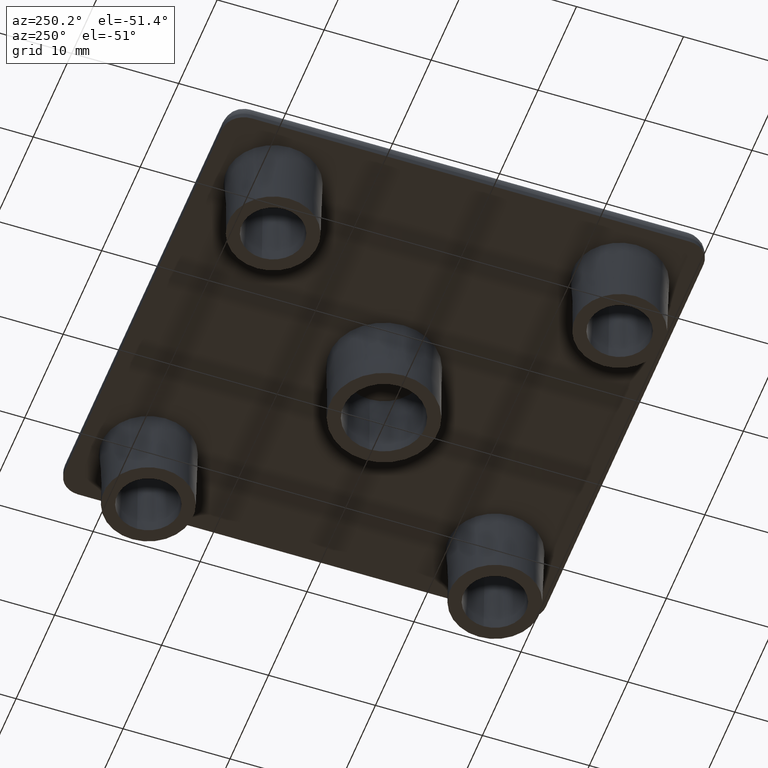
[diagram: clean part render]
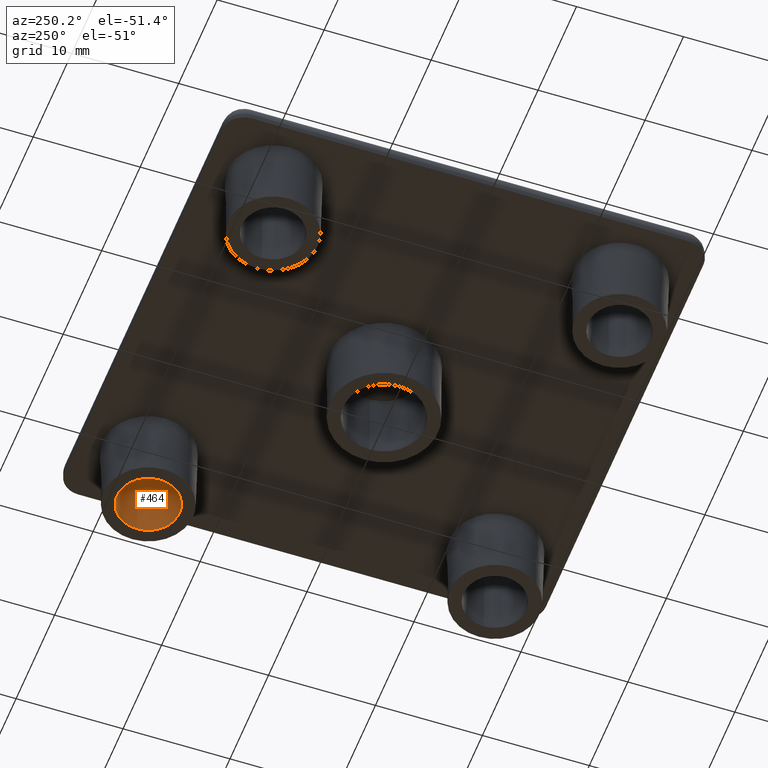
[diagram: same view with one face highlighted and labeled with its STEP entity id]
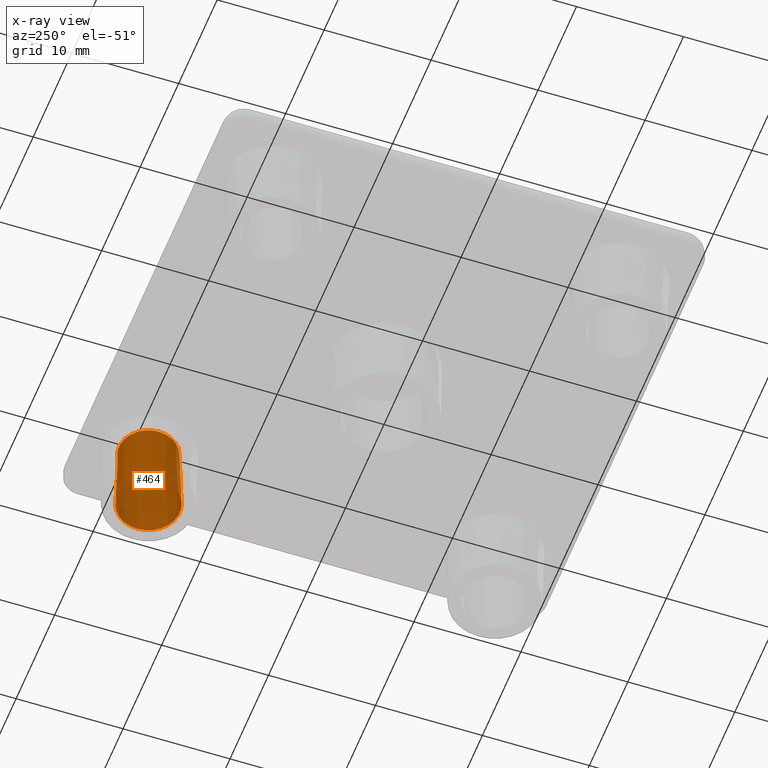
[diagram: x-ray of the same camera — body ghosted, the highlighted face saturated]
A machine part, auxiliary view. The second image highlights one B-rep face of the part: STEP entity #464.
The next image is the same camera in x-ray: the body ghosted, the highlighted face saturated — about 0% of this face is hidden behind the body in this view.
In plain terms, the highlighted conical surface has half-angle 1.5 deg.
Its self-contained STEP definition (entity closure, byte-faithful):
#97=FACE_BOUND('',#167,.T.);
#114=FACE_OUTER_BOUND('',#166,.T.);
#166=EDGE_LOOP('',(#366));
#167=EDGE_LOOP('',(#367));
#217=CIRCLE('',#523,2.925);
#218=CIRCLE('',#524,2.74169854901569);
#261=VERTEX_POINT('',#802);
#262=VERTEX_POINT('',#804);
#301=EDGE_CURVE('',#261,#261,#217,.T.);
#302=EDGE_CURVE('',#262,#262,#218,.T.);
#366=ORIENTED_EDGE('',*,*,#301,.F.);
#367=ORIENTED_EDGE('',*,*,#302,.F.);
#449=CONICAL_SURFACE('',#522,2.925,1.5);
#464=ADVANCED_FACE('',(#114,#97),#449,.F.);
#522=AXIS2_PLACEMENT_3D('',#801,#635,#636);
#523=AXIS2_PLACEMENT_3D('',#803,#637,#638);
#524=AXIS2_PLACEMENT_3D('',#805,#639,#640);
#635=DIRECTION('center_axis',(0.,0.,-1.));
#636=DIRECTION('ref_axis',(-1.,0.,0.));
#637=DIRECTION('center_axis',(0.,0.,1.));
#638=DIRECTION('ref_axis',(-1.,0.,0.));
#639=DIRECTION('center_axis',(0.,0.,-1.));
#640=DIRECTION('ref_axis',(-1.,0.,0.));
#801=CARTESIAN_POINT('Origin',(16.2,16.2,-7.));
#802=CARTESIAN_POINT('',(19.125,16.2,-7.));
#803=CARTESIAN_POINT('Origin',(16.2,16.2,-7.));
#804=CARTESIAN_POINT('',(18.9416985490157,16.2,0.));
#805=CARTESIAN_POINT('Origin',(16.2,16.2,0.));